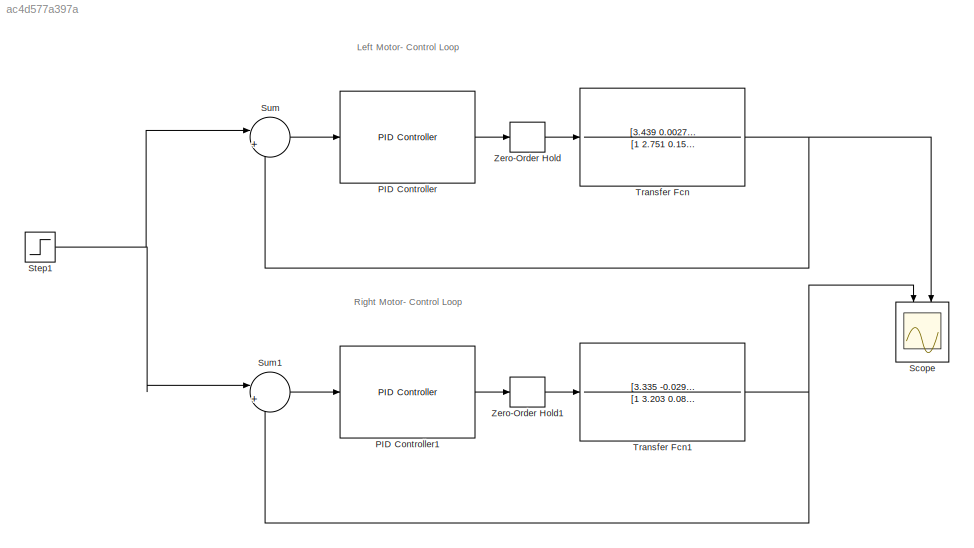
MODEL slx_ac4d577a397a
KIND model
CONFIG AbsTol = auto
CONFIG EnableMultiTasking = off
CONFIG FixedStep = auto
CONFIG MaxStep = auto
CONFIG MinStep = auto
CONFIG RelTol = 1e-3
CONFIG SampleTimeConstraint = Unconstrained
CONFIG SolverName = VariableStepAuto
CONFIG StartTime = 0.0
CONFIG StopTime = 3
BLOCK [Reference] PID Controller  REF=slpidlib/PID Controller
  Ports = [1, 1]
  SourceBlock = slpidlib/PID Controller
  SourceProductBaseCode = SL
  SourceType = PID 1dof
BLOCK [Reference] PID Controller1  REF=slpidlib/PID Controller
  Ports = [1, 1]
  SourceBlock = slpidlib/PID Controller
  SourceProductBaseCode = SL
  SourceType = PID 1dof
BLOCK [Scope] Scope
  Floating = off
  NameLocation = left
  NumInputPorts = 2
  Ports = [2]
  ScopeSpecificationString = Simulink.scopes.TimeScopeBlockCfg('CurrentConfiguration', extmgr.ConfigurationSet(extmgr.Configuration('Core','General UI',true),extmgr.Configuration('Core','Source UI',true),extmgr.Configuration('Sources','WiredSimulink',true),extmgr.Configuration('Visuals','Time Domain',true,'SerializedDisplays',{struct('MinYLimReal','-11.69569','MaxYLimReal','105.2612','YLabelReal','','MinYLimMag','0.00000','Ma...<+1450ch>
BLOCK [Step] Step1
  After = 80
  SampleTime = 0
  Time = 0
BLOCK [Sum] Sum
  Inputs = |+-
  Ports = [2, 1]
BLOCK [Sum] Sum1
  Inputs = |+-
  Ports = [2, 1]
BLOCK [TransferFcn] Transfer Fcn
  Denominator = [1 2.751 0.1531]
  Numerator = [3.439 0.002725]
BLOCK [TransferFcn] Transfer Fcn1
  Denominator = [1 3.203 0.08158]
  Numerator = [3.335 -0.0298]
BLOCK [ZeroOrderHold] Zero-Order Hold
  SampleTime = .1
BLOCK [ZeroOrderHold] Zero-Order Hold1
  SampleTime = .1
ANNOTATION (root): Left Motor- Control Loop
ANNOTATION (root): Right Motor- Control Loop
LINE PID Controller1:1 -> Zero-Order Hold1:1
LINE PID Controller:1 -> Zero-Order Hold:1
NET Step1:1 -> Sum1:1, Sum:1
LINE Sum1:1 -> PID Controller1:1
LINE Sum:1 -> PID Controller:1
NET Transfer Fcn1:1 -> Scope:1, Sum1:2
NET Transfer Fcn:1 -> Scope:2, Sum:2
LINE Zero-Order Hold1:1 -> Transfer Fcn1:1
LINE Zero-Order Hold:1 -> Transfer Fcn:1
note: NET lines group one-source signal fan-out (src -> all destinations, sorted); 1:1 wires keep LINE
